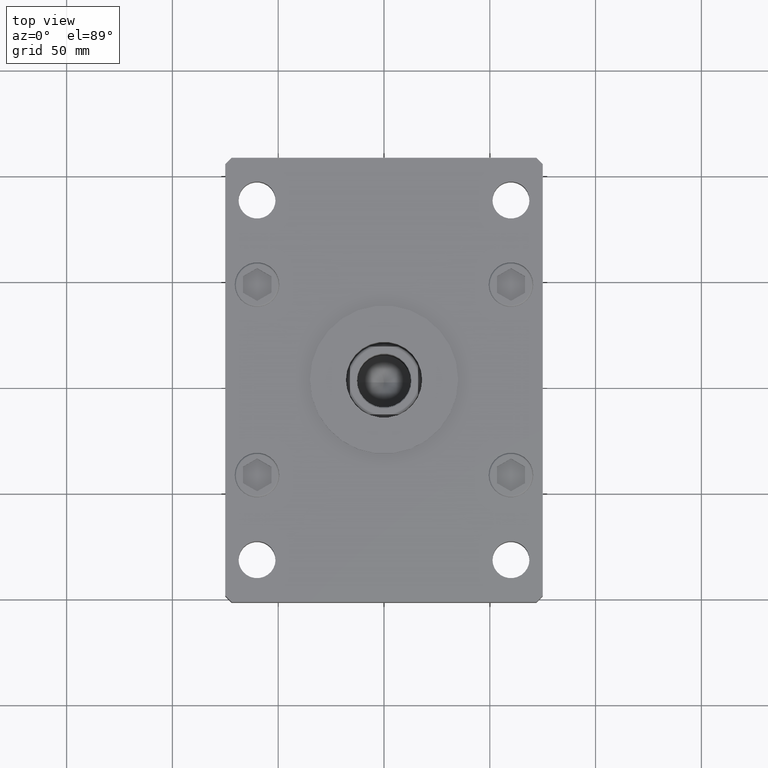
[diagram: clean part render]
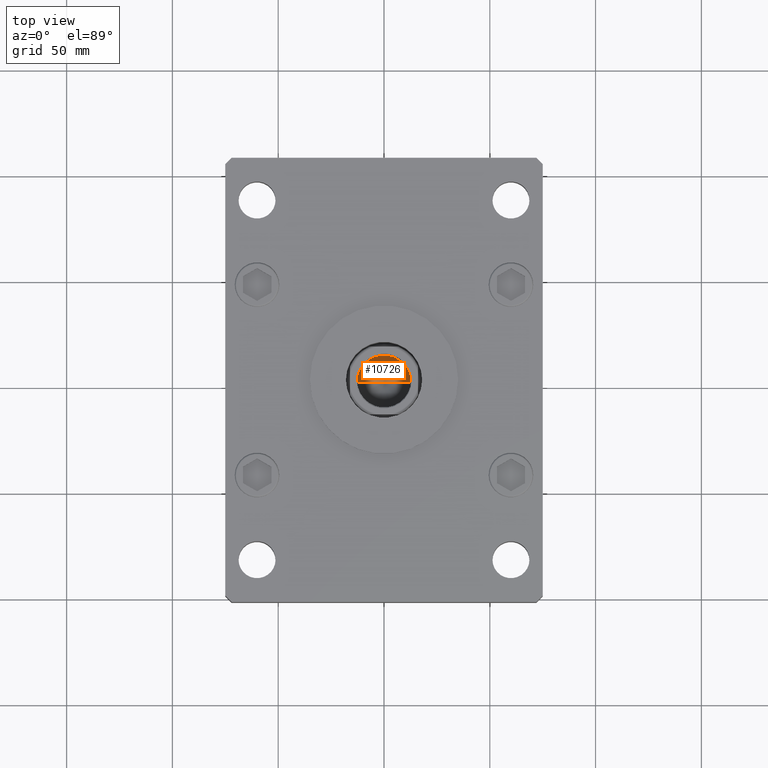
[diagram: same view with one face highlighted and labeled with its STEP entity id]
A machine part, top view. The second image highlights one B-rep face of the part: STEP entity #10726.
In plain terms, the highlighted conical surface has half-angle 59 deg.
Its self-contained STEP definition (entity closure, byte-faithful):
#1504 = DIRECTION ( 'NONE',  ( -0.8571673007021122226, 1.049727191138618572E-16, 0.5150380749100542666 ) ) ;
#3210 = VECTOR ( 'NONE', #33372, 1000.000000000000000 ) ;
#3606 = AXIS2_PLACEMENT_3D ( 'NONE', #35059, #35583, #3822 ) ;
#3822 = DIRECTION ( 'NONE',  ( 1.000000000000000000, 0.000000000000000000, 0.000000000000000000 ) ) ;
#5034 = CARTESIAN_POINT ( 'NONE',  ( -12.74999999999999112, 1.561424668912874125E-15, 128.0000000000000000 ) ) ;
#5097 = ORIENTED_EDGE ( 'NONE', *, *, #30426, .F. ) ;
#5648 = AXIS2_PLACEMENT_3D ( 'NONE', #5975, #13549, #21682 ) ;
#5975 = CARTESIAN_POINT ( 'NONE',  ( 0.000000000000000000, 0.000000000000000000, 128.0000000000000000 ) ) ;
#7009 = CARTESIAN_POINT ( 'NONE',  ( -12.74999999999999112, 1.561424668912874125E-15, 128.0000000000000000 ) ) ;
#8676 = VECTOR ( 'NONE', #1504, 1000.000000000000000 ) ;
#10726 = ADVANCED_FACE ( 'NONE', ( #42540 ), #22076, .F. ) ;
#12849 = ORIENTED_EDGE ( 'NONE', *, *, #13522, .T. ) ;
#13522 = EDGE_CURVE ( 'NONE', #50961, #27045, #42838, .T. ) ;
#13549 = DIRECTION ( 'NONE',  ( -0.000000000000000000, -0.000000000000000000, 1.000000000000000000 ) ) ;
#20493 = ORIENTED_EDGE ( 'NONE', *, *, #27192, .T. ) ;
#21682 = DIRECTION ( 'NONE',  ( 1.000000000000000000, 0.000000000000000000, 0.000000000000000000 ) ) ;
#22076 = CONICAL_SURFACE ( 'NONE', #5648, 12.74999999999999112, 1.029744258676654312 ) ;
#23018 = CARTESIAN_POINT ( 'NONE',  ( -1.307202896762960287E-14, 0.000000000000000000, 120.3390271073986213 ) ) ;
#25878 = LINE ( 'NONE', #5034, #8676 ) ;
#27045 = VERTEX_POINT ( 'NONE', #52999 ) ;
#27192 = EDGE_CURVE ( 'NONE', #27045, #27428, #35611, .T. ) ;
#27428 = VERTEX_POINT ( 'NONE', #7009 ) ;
#30426 = EDGE_CURVE ( 'NONE', #50961, #27428, #25878, .T. ) ;
#33372 = DIRECTION ( 'NONE',  ( 0.8571673007021122226, 0.000000000000000000, 0.5150380749100542666 ) ) ;
#34172 = CARTESIAN_POINT ( 'NONE',  ( 12.74999999999999112, 0.000000000000000000, 128.0000000000000000 ) ) ;
#35059 = CARTESIAN_POINT ( 'NONE',  ( 0.000000000000000000, 0.000000000000000000, 128.0000000000000000 ) ) ;
#35583 = DIRECTION ( 'NONE',  ( -0.000000000000000000, -0.000000000000000000, 1.000000000000000000 ) ) ;
#35611 = CIRCLE ( 'NONE', #3606, 12.74999999999999112 ) ;
#37783 = EDGE_LOOP ( 'NONE', ( #5097, #12849, #20493 ) ) ;
#42540 = FACE_OUTER_BOUND ( 'NONE', #37783, .T. ) ;
#42838 = LINE ( 'NONE', #34172, #3210 ) ;
#50961 = VERTEX_POINT ( 'NONE', #23018 ) ;
#52999 = CARTESIAN_POINT ( 'NONE',  ( 12.74999999999999112, 0.000000000000000000, 128.0000000000000000 ) ) ;